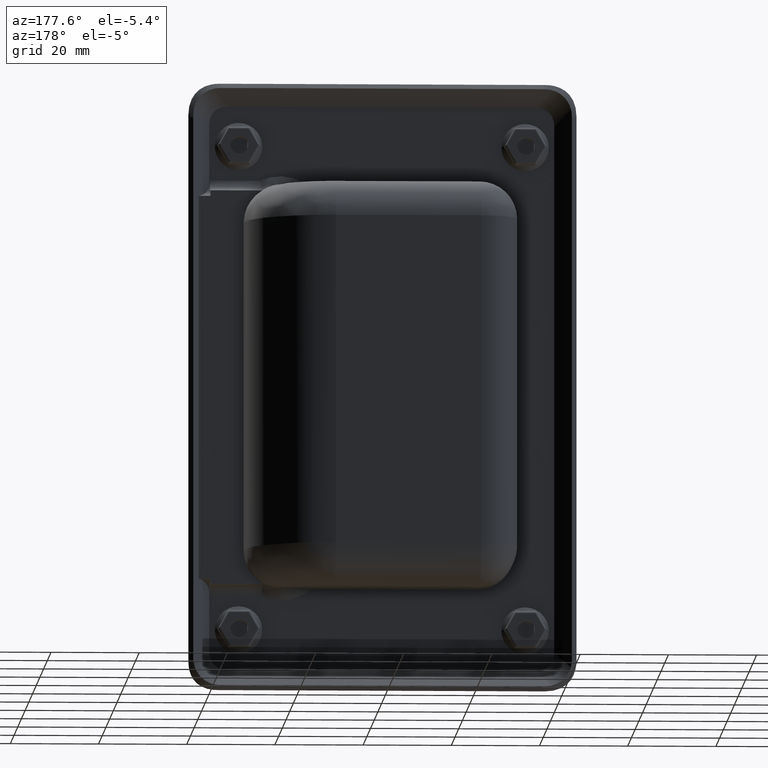
[diagram: clean part render]
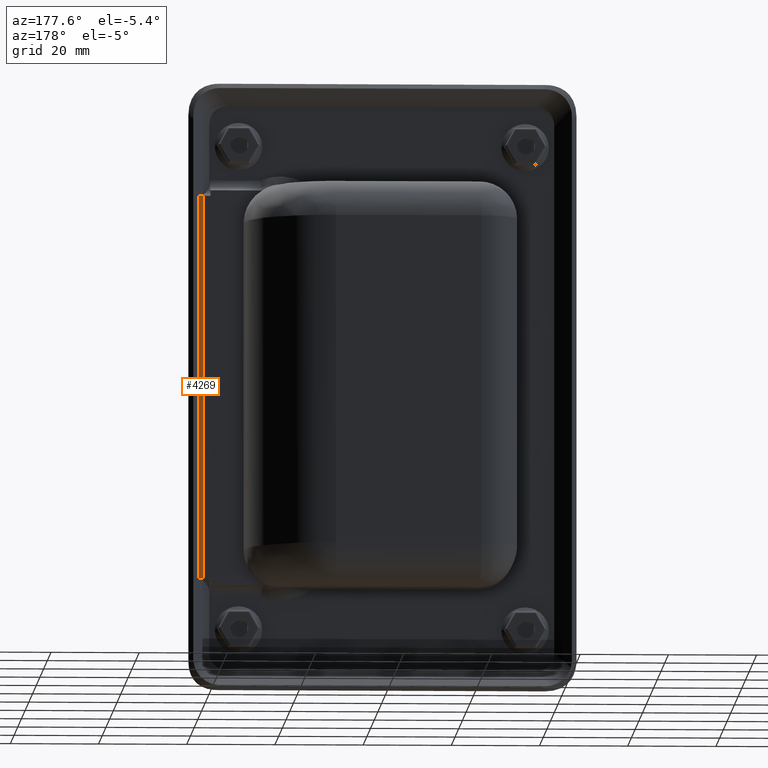
[diagram: same view with one face highlighted and labeled with its STEP entity id]
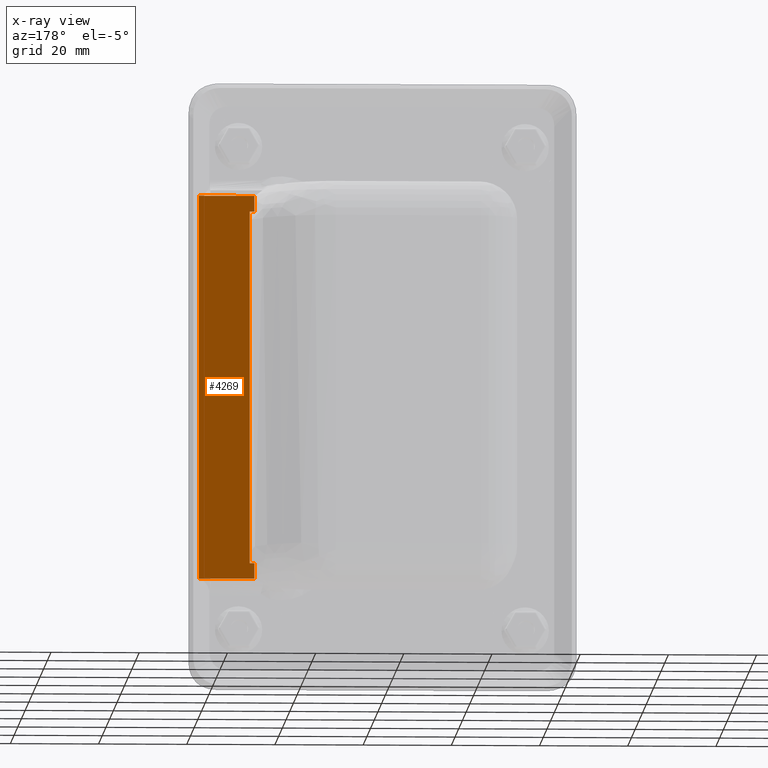
[diagram: x-ray of the same camera — body ghosted, the highlighted face saturated]
A machine part, auxiliary view. The second image highlights one B-rep face of the part: STEP entity #4269.
The next image is the same camera in x-ray: the body ghosted, the highlighted face saturated — about 0% of this face is hidden behind the body in this view.
In plain terms, the highlighted face is a freeform B-spline surface patch.
Its self-contained STEP definition (entity closure, byte-faithful):
#3514=CARTESIAN_POINT('',(29.000000000174801,3.559985474065460,43.559999999774497));
#3515=VERTEX_POINT('',#3514);
#3534=CARTESIAN_POINT('',(41.620919098124801,3.559985474065460,43.559999999774497));
#3535=VERTEX_POINT('',#3534);
#3549=CARTESIAN_POINT('',(29.000000000174801,3.559985474065460,43.559999999774497));
#3550=CARTESIAN_POINT('',(41.620919098124801,3.559985474065460,43.559999999774497));
#3551=QUASI_UNIFORM_CURVE('',1,(#3549,#3550),.UNSPECIFIED.,.F.,.U.);
#3552=EDGE_CURVE('',#3515,#3535,#3551,.T.);
#3571=CARTESIAN_POINT('',(29.000000000174801,3.559985474074375,-43.560000000220647));
#3572=VERTEX_POINT('',#3571);
#3586=CARTESIAN_POINT('',(41.620919098133697,3.559985474074375,-43.560000000220647));
#3587=VERTEX_POINT('',#3586);
#3588=CARTESIAN_POINT('',(29.000000000174801,3.559985474074375,-43.560000000220647));
#3589=CARTESIAN_POINT('',(41.620919098133697,3.559985474074375,-43.560000000220647));
#3590=QUASI_UNIFORM_CURVE('',1,(#3588,#3589),.UNSPECIFIED.,.F.,.U.);
#3591=EDGE_CURVE('',#3572,#3587,#3590,.T.);
#3657=CARTESIAN_POINT('',(30.060000000174849,3.559985474074015,-40.025786437768062));
#3658=VERTEX_POINT('',#3657);
#3659=CARTESIAN_POINT('',(30.060000000174849,3.559985474065821,40.025786437401003));
#3660=VERTEX_POINT('',#3659);
#3661=CARTESIAN_POINT('',(30.060000000174849,3.559985474074015,-40.025786437768062));
#3662=CARTESIAN_POINT('',(30.060000000174849,3.559985474065821,40.025786437401003));
#3663=QUASI_UNIFORM_CURVE('',1,(#3661,#3662),.UNSPECIFIED.,.F.,.U.);
#3664=EDGE_CURVE('',#3658,#3660,#3663,.T.);
#3686=CARTESIAN_POINT('',(29.000000000174801,3.559985474074010,-40.025786437768062));
#3687=VERTEX_POINT('',#3686);
#3688=CARTESIAN_POINT('',(30.060000000174849,3.559985474074015,-40.025786437768062));
#3689=CARTESIAN_POINT('',(29.000000000174801,3.559985474074010,-40.025786437768062));
#3690=QUASI_UNIFORM_CURVE('',1,(#3688,#3689),.UNSPECIFIED.,.F.,.U.);
#3691=EDGE_CURVE('',#3658,#3687,#3690,.T.);
#3707=CARTESIAN_POINT('',(29.000000000174850,3.559985474065821,40.025786437401003));
#3708=VERTEX_POINT('',#3707);
#3714=CARTESIAN_POINT('',(29.000000000174850,3.559985474065821,40.025786437401003));
#3715=CARTESIAN_POINT('',(30.060000000174849,3.559985474065821,40.025786437401003));
#3716=QUASI_UNIFORM_CURVE('',1,(#3714,#3715),.UNSPECIFIED.,.F.,.U.);
#3717=EDGE_CURVE('',#3708,#3660,#3716,.T.);
#3862=CARTESIAN_POINT('',(41.620919098124801,3.559985474065460,43.559999999774497));
#3863=CARTESIAN_POINT('',(41.620919098133697,3.559985474074375,-43.560000000220647));
#3864=QUASI_UNIFORM_CURVE('',1,(#3862,#3863),.UNSPECIFIED.,.F.,.U.);
#3865=EDGE_CURVE('',#3535,#3587,#3864,.T.);
#4094=CARTESIAN_POINT('',(29.000000000174850,3.559985474065821,40.025786437401003));
#4095=CARTESIAN_POINT('',(29.000000000174801,3.559985474065460,43.559999999774497));
#4096=QUASI_UNIFORM_CURVE('',1,(#4094,#4095),.UNSPECIFIED.,.F.,.U.);
#4097=EDGE_CURVE('',#3708,#3515,#4096,.T.);
#4102=CARTESIAN_POINT('',(29.000000000174801,3.559985474074375,-43.560000000220647));
#4103=CARTESIAN_POINT('',(29.000000000174801,3.559985474074010,-40.025786437768062));
#4104=QUASI_UNIFORM_CURVE('',1,(#4102,#4103),.UNSPECIFIED.,.F.,.U.);
#4105=EDGE_CURVE('',#3572,#3687,#4104,.T.);
#4254=CARTESIAN_POINT('',(28.369585160784329,3.559985474065016,47.911645466559250));
#4255=CARTESIAN_POINT('',(28.369585160784329,3.559985474074821,-47.911646245918902));
#4256=CARTESIAN_POINT('',(42.251333373325117,3.559985474065016,47.911645466559250));
#4257=CARTESIAN_POINT('',(42.251333373325117,3.559985474074821,-47.911646245918902));
#4258=B_SPLINE_SURFACE_WITH_KNOTS('',1,1,((#4254,#4256),(#4255,#4257)),.UNSPECIFIED.,.F.,.F.,.U.,(2,2),(2,2),(0.0,95.823291712478152),(0.0,13.881748212540799),.UNSPECIFIED.);
#4259=ORIENTED_EDGE('',*,*,#3717,.F.);
#4260=ORIENTED_EDGE('',*,*,#4097,.T.);
#4261=ORIENTED_EDGE('',*,*,#3552,.T.);
#4262=ORIENTED_EDGE('',*,*,#3865,.T.);
#4263=ORIENTED_EDGE('',*,*,#3591,.F.);
#4264=ORIENTED_EDGE('',*,*,#4105,.T.);
#4265=ORIENTED_EDGE('',*,*,#3691,.F.);
#4266=ORIENTED_EDGE('',*,*,#3664,.T.);
#4267=EDGE_LOOP('',(#4259,#4260,#4261,#4262,#4263,#4264,#4265,#4266));
#4268=FACE_OUTER_BOUND('',#4267,.T.);
#4269=ADVANCED_FACE('',(#4268),#4258,.F.);